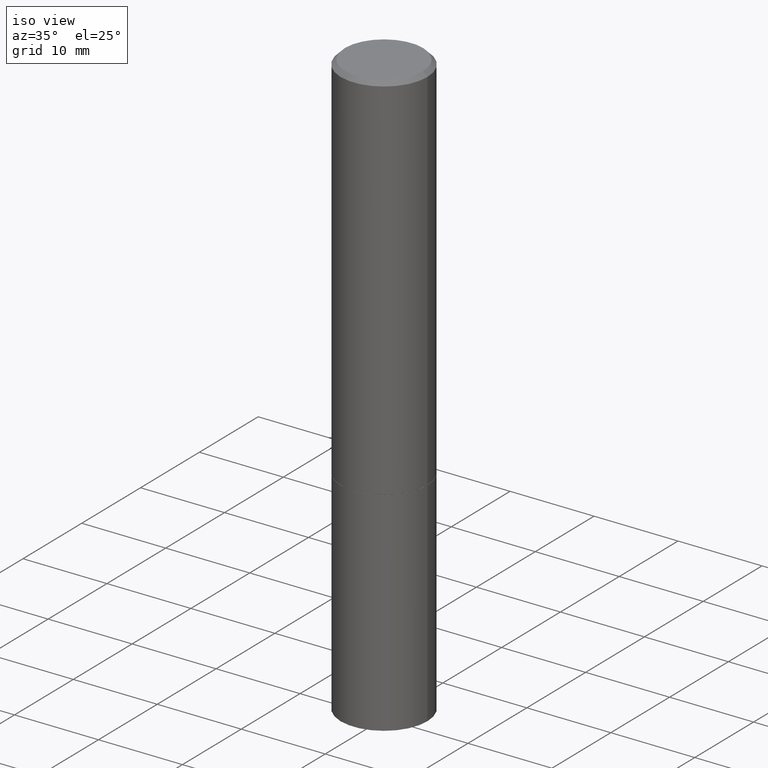
[diagram: clean part render]
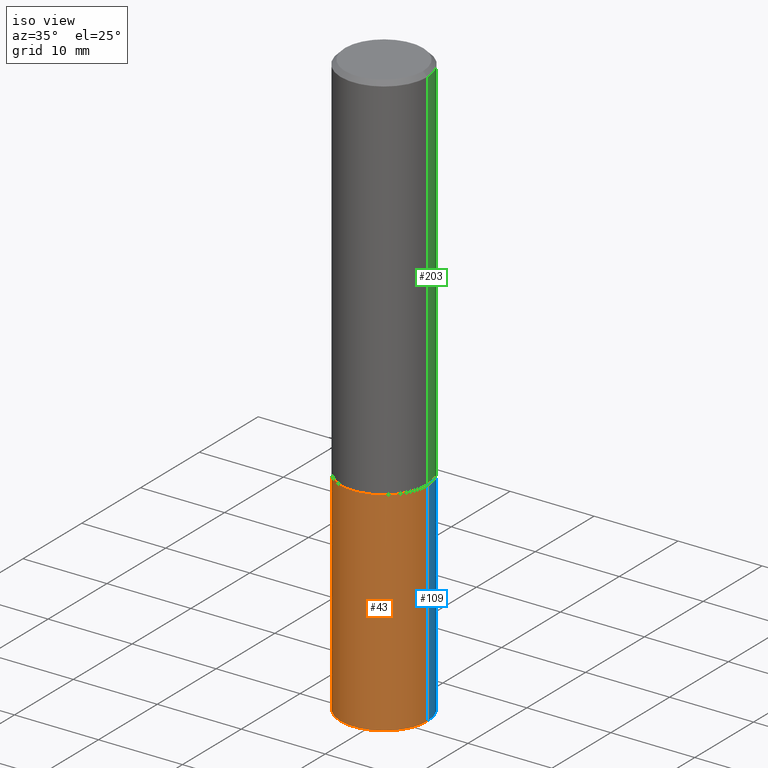
[diagram: same view with three faces highlighted in distinct colors, each labeled with its STEP entity id]
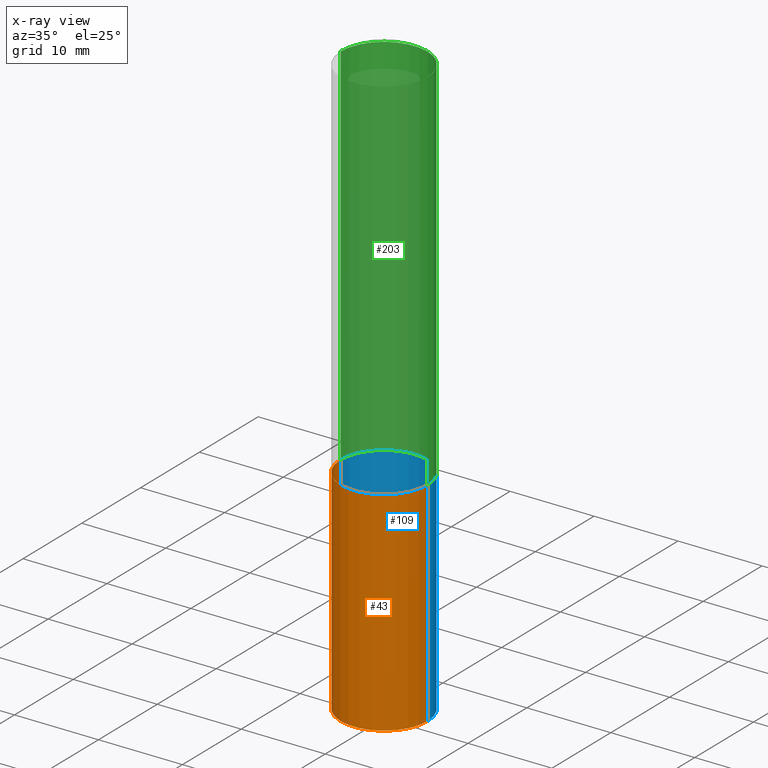
[diagram: x-ray of the same camera — body ghosted, the three highlighted faces saturated]
A machine part, iso view with three faces highlighted in distinct colors.
The next image is the same camera in x-ray (body ghosted, the three faces saturated) — at least one of them is partly hidden behind the body in this view.
Their STEP definitions:

[orange] entity #43 — the highlighted cylindrical surface (partial cylindrical patch) has radius 5.1587 mm, axis along (-0, 0, 1).
#4 = CARTESIAN_POINT ( 'NONE',  ( 0.2031000000000000028, -1.418239719838080775E-15, 9.903515031641546145E-30 ) ) ;
#6 = DIRECTION ( 'NONE',  ( -2.445468806185136597E-29, 3.491481338843145583E-15, 1.000000000000000000 ) ) ;
#8 = EDGE_CURVE ( 'NONE', #208, #133, #359, .T. ) ;
#10 = DIRECTION ( 'NONE',  ( 1.000000000000000000, -6.982962677686264344E-15, 0.000000000000000000 ) ) ;
#40 = DIRECTION ( 'NONE',  ( -2.445468806185136597E-29, 3.491481338843145583E-15, 1.000000000000000000 ) ) ;
#41 = VECTOR ( 'NONE', #339, 39.37007874015748143 ) ;
#43 = ADVANCED_FACE ( 'NONE', ( #46 ), #73, .T. ) ;
#46 = FACE_OUTER_BOUND ( 'NONE', #258, .T. ) ;
#67 = EDGE_CURVE ( 'NONE', #208, #281, #114, .T. ) ;
#73 = CYLINDRICAL_SURFACE ( 'NONE', #276, 0.2031000000000000028 ) ;
#87 = ORIENTED_EDGE ( 'NONE', *, *, #277, .T. ) ;
#93 = VECTOR ( 'NONE', #261, 39.37007874015748143 ) ;
#95 = VERTEX_POINT ( 'NONE', #142 ) ;
#114 = LINE ( 'NONE', #199, #41 ) ;
#123 = ORIENTED_EDGE ( 'NONE', *, *, #67, .F. ) ;
#131 = CARTESIAN_POINT ( 'NONE',  ( 6.725039217009124520E-29, -9.601573681818649859E-15, -2.750000000000000000 ) ) ;
#133 = VERTEX_POINT ( 'NONE', #165 ) ;
#137 = DIRECTION ( 'NONE',  ( -2.445468806185136597E-29, 3.491481338843145583E-15, 1.000000000000000000 ) ) ;
#141 = CIRCLE ( 'NONE', #342, 0.2031000000000000028 ) ;
#142 = CARTESIAN_POINT ( 'NONE',  ( 0.2031000000000000028, -7.528332062813585446E-15, -1.750000000000000000 ) ) ;
#165 = CARTESIAN_POINT ( 'NONE',  ( 0.2030999999999997530, -1.099494082516604752E-14, -2.750000000000000000 ) ) ;
#190 = CARTESIAN_POINT ( 'NONE',  ( 4.279570410823988484E-29, -6.110092342975504671E-15, -1.750000000000000000 ) ) ;
#199 = CARTESIAN_POINT ( 'NONE',  ( -0.2031000000000000028, 1.443112296328763497E-15, -9.990357168307714203E-30 ) ) ;
#208 = VERTEX_POINT ( 'NONE', #389 ) ;
#233 = ORIENTED_EDGE ( 'NONE', *, *, #8, .T. ) ;
#234 = LINE ( 'NONE', #4, #93 ) ;
#242 = AXIS2_PLACEMENT_3D ( 'NONE', #131, #6, #10 ) ;
#254 = CARTESIAN_POINT ( 'NONE',  ( -0.2031000000000000028, -6.412720716068313768E-15, -1.750000000000000000 ) ) ;
#258 = EDGE_LOOP ( 'NONE', ( #123, #233, #87, #291 ) ) ;
#261 = DIRECTION ( 'NONE',  ( -2.445468806185136877E-29, 3.491481338843145188E-15, 1.000000000000000000 ) ) ;
#267 = DIRECTION ( 'NONE',  ( 1.000000000000000000, -6.982962677686269866E-15, 0.000000000000000000 ) ) ;
#268 = DIRECTION ( 'NONE',  ( 1.000000000000000000, -6.982962677686266711E-15, 4.876176775795935793E-29 ) ) ;
#276 = AXIS2_PLACEMENT_3D ( 'NONE', #343, #137, #268 ) ;
#277 = EDGE_CURVE ( 'NONE', #133, #95, #234, .T. ) ;
#281 = VERTEX_POINT ( 'NONE', #254 ) ;
#291 = ORIENTED_EDGE ( 'NONE', *, *, #349, .F. ) ;
#339 = DIRECTION ( 'NONE',  ( -2.445468806185136877E-29, 3.491481338843145188E-15, 1.000000000000000000 ) ) ;
#342 = AXIS2_PLACEMENT_3D ( 'NONE', #190, #40, #267 ) ;
#343 = CARTESIAN_POINT ( 'NONE',  ( 0.000000000000000000, 0.000000000000000000, 0.000000000000000000 ) ) ;
#349 = EDGE_CURVE ( 'NONE', #281, #95, #141, .T. ) ;
#359 = CIRCLE ( 'NONE', #242, 0.2031000000000000028 ) ;
#389 = CARTESIAN_POINT ( 'NONE',  ( -0.2030999999999997530, -8.183333961980571451E-15, -2.750000000000000000 ) ) ;

[blue] entity #109 — the highlighted cylindrical surface (partial cylindrical patch) has radius 5.1587 mm, axis along (-0, 0, 1).
#4 = CARTESIAN_POINT ( 'NONE',  ( 0.2031000000000000028, -1.418239719838080775E-15, 9.903515031641546145E-30 ) ) ;
#5 = AXIS2_PLACEMENT_3D ( 'NONE', #106, #217, #305 ) ;
#36 = CARTESIAN_POINT ( 'NONE',  ( 4.279570410823988484E-29, -6.110092342975504671E-15, -1.750000000000000000 ) ) ;
#41 = VECTOR ( 'NONE', #339, 39.37007874015748143 ) ;
#48 = AXIS2_PLACEMENT_3D ( 'NONE', #102, #134, #333 ) ;
#52 = ORIENTED_EDGE ( 'NONE', *, *, #366, .T. ) ;
#67 = EDGE_CURVE ( 'NONE', #208, #281, #114, .T. ) ;
#93 = VECTOR ( 'NONE', #261, 39.37007874015748143 ) ;
#95 = VERTEX_POINT ( 'NONE', #142 ) ;
#102 = CARTESIAN_POINT ( 'NONE',  ( 0.000000000000000000, 0.000000000000000000, 0.000000000000000000 ) ) ;
#106 = CARTESIAN_POINT ( 'NONE',  ( 6.725039217009124520E-29, -9.601573681818649859E-15, -2.750000000000000000 ) ) ;
#109 = ADVANCED_FACE ( 'NONE', ( #195 ), #303, .T. ) ;
#114 = LINE ( 'NONE', #199, #41 ) ;
#122 = DIRECTION ( 'NONE',  ( -2.445468806185136597E-29, 3.491481338843145583E-15, 1.000000000000000000 ) ) ;
#133 = VERTEX_POINT ( 'NONE', #165 ) ;
#134 = DIRECTION ( 'NONE',  ( -2.445468806185136597E-29, 3.491481338843145583E-15, 1.000000000000000000 ) ) ;
#140 = EDGE_LOOP ( 'NONE', ( #52, #390, #184, #237 ) ) ;
#142 = CARTESIAN_POINT ( 'NONE',  ( 0.2031000000000000028, -7.528332062813585446E-15, -1.750000000000000000 ) ) ;
#165 = CARTESIAN_POINT ( 'NONE',  ( 0.2030999999999997530, -1.099494082516604752E-14, -2.750000000000000000 ) ) ;
#173 = CIRCLE ( 'NONE', #5, 0.2031000000000000028 ) ;
#184 = ORIENTED_EDGE ( 'NONE', *, *, #260, .F. ) ;
#195 = FACE_OUTER_BOUND ( 'NONE', #140, .T. ) ;
#199 = CARTESIAN_POINT ( 'NONE',  ( -0.2031000000000000028, 1.443112296328763497E-15, -9.990357168307714203E-30 ) ) ;
#208 = VERTEX_POINT ( 'NONE', #389 ) ;
#210 = CIRCLE ( 'NONE', #375, 0.2031000000000000028 ) ;
#217 = DIRECTION ( 'NONE',  ( -2.445468806185136597E-29, 3.491481338843145583E-15, 1.000000000000000000 ) ) ;
#234 = LINE ( 'NONE', #4, #93 ) ;
#237 = ORIENTED_EDGE ( 'NONE', *, *, #277, .F. ) ;
#254 = CARTESIAN_POINT ( 'NONE',  ( -0.2031000000000000028, -6.412720716068313768E-15, -1.750000000000000000 ) ) ;
#260 = EDGE_CURVE ( 'NONE', #95, #281, #210, .T. ) ;
#261 = DIRECTION ( 'NONE',  ( -2.445468806185136877E-29, 3.491481338843145188E-15, 1.000000000000000000 ) ) ;
#277 = EDGE_CURVE ( 'NONE', #133, #95, #234, .T. ) ;
#281 = VERTEX_POINT ( 'NONE', #254 ) ;
#303 = CYLINDRICAL_SURFACE ( 'NONE', #48, 0.2031000000000000028 ) ;
#305 = DIRECTION ( 'NONE',  ( 1.000000000000000000, -6.982962677686264344E-15, 0.000000000000000000 ) ) ;
#323 = DIRECTION ( 'NONE',  ( 1.000000000000000000, -6.982962677686269866E-15, 0.000000000000000000 ) ) ;
#333 = DIRECTION ( 'NONE',  ( 1.000000000000000000, -6.982962677686266711E-15, 4.876176775795935793E-29 ) ) ;
#339 = DIRECTION ( 'NONE',  ( -2.445468806185136877E-29, 3.491481338843145188E-15, 1.000000000000000000 ) ) ;
#366 = EDGE_CURVE ( 'NONE', #133, #208, #173, .T. ) ;
#375 = AXIS2_PLACEMENT_3D ( 'NONE', #36, #122, #323 ) ;
#389 = CARTESIAN_POINT ( 'NONE',  ( -0.2030999999999997530, -8.183333961980571451E-15, -2.750000000000000000 ) ) ;
#390 = ORIENTED_EDGE ( 'NONE', *, *, #67, .T. ) ;

[green] entity #203 — the highlighted cylindrical surface (partial cylindrical patch) has radius 5.1587 mm, axis along (-0, 0, 1).
#9 = DIRECTION ( 'NONE',  ( -2.445468806185136597E-29, 3.491481338843145583E-15, 1.000000000000000000 ) ) ;
#20 = CIRCLE ( 'NONE', #285, 0.2030999999999998362 ) ;
#24 = EDGE_LOOP ( 'NONE', ( #302, #171, #164, #235 ) ) ;
#47 = DIRECTION ( 'NONE',  ( -2.445468806185136597E-29, 3.491481338843145583E-15, 1.000000000000000000 ) ) ;
#50 = EDGE_CURVE ( 'NONE', #325, #387, #255, .T. ) ;
#57 = DIRECTION ( 'NONE',  ( 1.000000000000000000, -6.982962677686266711E-15, 4.876176775795935793E-29 ) ) ;
#91 = CYLINDRICAL_SURFACE ( 'NONE', #251, 0.2030999999999999472 ) ;
#126 = LINE ( 'NONE', #320, #271 ) ;
#143 = DIRECTION ( 'NONE',  ( 1.000000000000000000, -6.982962677686264344E-15, 0.000000000000000000 ) ) ;
#151 = FACE_OUTER_BOUND ( 'NONE', #24, .T. ) ;
#160 = AXIS2_PLACEMENT_3D ( 'NONE', #196, #47, #143 ) ;
#164 = ORIENTED_EDGE ( 'NONE', *, *, #249, .F. ) ;
#171 = ORIENTED_EDGE ( 'NONE', *, *, #318, .T. ) ;
#181 = CARTESIAN_POINT ( 'NONE',  ( 4.890937612370284544E-31, -6.982962677686307633E-17, -0.02000000000000004552 ) ) ;
#192 = CARTESIAN_POINT ( 'NONE',  ( -0.2031000000000000583, -1.645102947877997012E-15, -1.748999999999999888 ) ) ;
#196 = CARTESIAN_POINT ( 'NONE',  ( 4.277124942017804002E-29, -6.106600861636660875E-15, -1.748999999999999888 ) ) ;
#203 = ADVANCED_FACE ( 'NONE', ( #151 ), #91, .T. ) ;
#204 = CARTESIAN_POINT ( 'NONE',  ( 0.000000000000000000, 0.000000000000000000, 0.000000000000000000 ) ) ;
#212 = CARTESIAN_POINT ( 'NONE',  ( 0.2031000000000000028, -7.524840581474740861E-15, -1.748999999999999888 ) ) ;
#227 = VERTEX_POINT ( 'NONE', #296 ) ;
#231 = VECTOR ( 'NONE', #358, 39.37007874015748143 ) ;
#235 = ORIENTED_EDGE ( 'NONE', *, *, #279, .F. ) ;
#240 = CARTESIAN_POINT ( 'NONE',  ( -0.2030999999999999472, 1.443112296328763103E-15, -9.990357168307711400E-30 ) ) ;
#249 = EDGE_CURVE ( 'NONE', #266, #227, #20, .T. ) ;
#251 = AXIS2_PLACEMENT_3D ( 'NONE', #204, #9, #57 ) ;
#255 = CIRCLE ( 'NONE', #160, 0.2031000000000000028 ) ;
#263 = DIRECTION ( 'NONE',  ( 1.000000000000000000, -6.982962677686266711E-15, 0.000000000000000000 ) ) ;
#266 = VERTEX_POINT ( 'NONE', #293 ) ;
#271 = VECTOR ( 'NONE', #287, 39.37007874015748143 ) ;
#279 = EDGE_CURVE ( 'NONE', #325, #266, #126, .T. ) ;
#285 = AXIS2_PLACEMENT_3D ( 'NONE', #181, #353, #263 ) ;
#287 = DIRECTION ( 'NONE',  ( -2.445468806185136877E-29, 3.491481338843145188E-15, 1.000000000000000000 ) ) ;
#293 = CARTESIAN_POINT ( 'NONE',  ( 0.2030999999999998362, -1.463196770124260168E-15, -0.02000000000000004552 ) ) ;
#296 = CARTESIAN_POINT ( 'NONE',  ( -0.2030999999999998362, 1.348410093061216491E-15, -0.02000000000000004552 ) ) ;
#302 = ORIENTED_EDGE ( 'NONE', *, *, #50, .T. ) ;
#318 = EDGE_CURVE ( 'NONE', #387, #227, #386, .T. ) ;
#320 = CARTESIAN_POINT ( 'NONE',  ( 0.2030999999999999472, -1.418239719838080381E-15, 9.903515031641543342E-30 ) ) ;
#325 = VERTEX_POINT ( 'NONE', #212 ) ;
#353 = DIRECTION ( 'NONE',  ( -2.445468806185136597E-29, 3.491481338843145583E-15, 1.000000000000000000 ) ) ;
#358 = DIRECTION ( 'NONE',  ( -2.445468806185136877E-29, 3.491481338843145188E-15, 1.000000000000000000 ) ) ;
#386 = LINE ( 'NONE', #240, #231 ) ;
#387 = VERTEX_POINT ( 'NONE', #192 ) ;